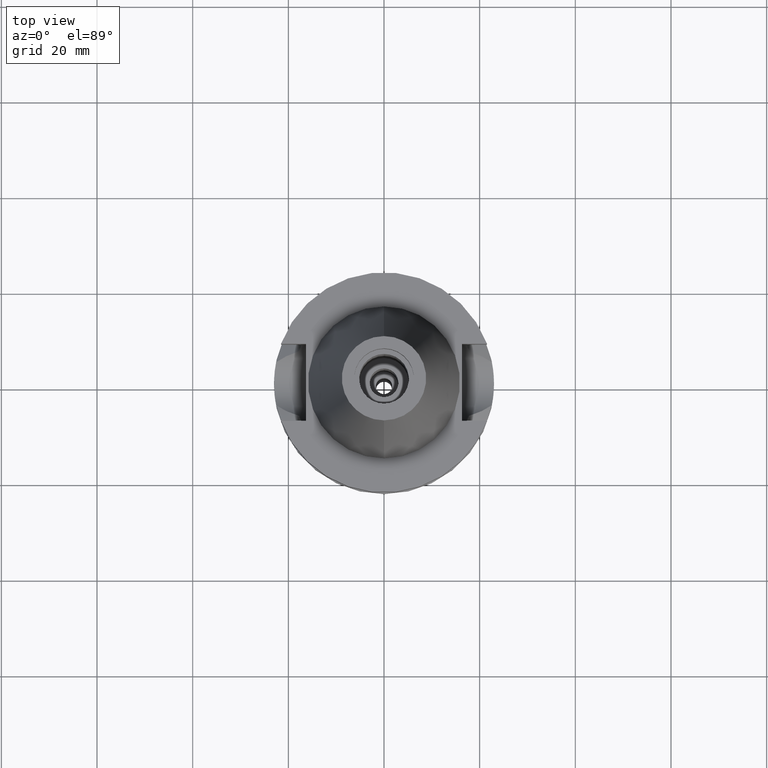
[diagram: clean part render]
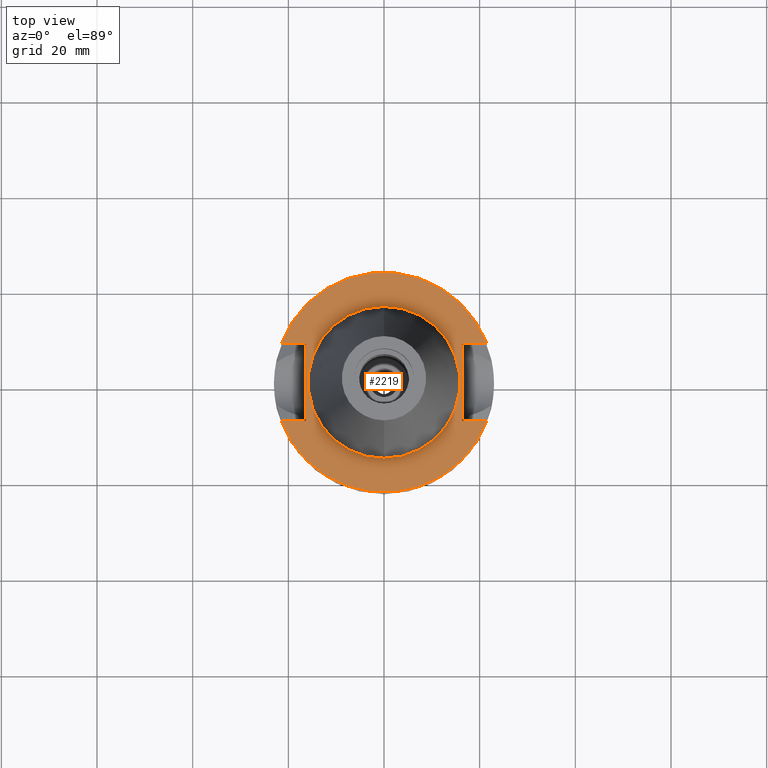
[diagram: same view with one face highlighted and labeled with its STEP entity id]
A machine part, top view. The second image highlights one B-rep face of the part: STEP entity #2219.
In plain terms, the highlighted planar face has unit normal (0, 0, -1).
Its self-contained STEP definition (entity closure, byte-faithful):
#54 = ORIENTED_EDGE ( 'NONE', *, *, #237, .F. ) ;
#59 = AXIS2_PLACEMENT_3D ( 'NONE', #1564, #2686, #1554 ) ;
#60 = VECTOR ( 'NONE', #930, 1000.000000000000000 ) ;
#132 = LINE ( 'NONE', #175, #2717 ) ;
#175 = CARTESIAN_POINT ( 'NONE',  ( -16.29999999999999716, -8.050000000000000711, -1.000000000000000000 ) ) ;
#216 = VERTEX_POINT ( 'NONE', #1632 ) ;
#237 = EDGE_CURVE ( 'NONE', #2261, #2210, #962, .T. ) ;
#284 = CARTESIAN_POINT ( 'NONE',  ( 16.29999999999999716, 8.050000000000000711, -1.000000000000000000 ) ) ;
#309 = EDGE_CURVE ( 'NONE', #1904, #1220, #2797, .T. ) ;
#314 = ORIENTED_EDGE ( 'NONE', *, *, #2080, .F. ) ;
#328 = DIRECTION ( 'NONE',  ( 1.000000000000000000, 9.380896855521999773E-14, 0.0000000000000000000 ) ) ;
#457 = DIRECTION ( 'NONE',  ( 0.0000000000000000000, 0.0000000000000000000, 1.000000000000000000 ) ) ;
#544 = EDGE_CURVE ( 'NONE', #2210, #2261, #629, .T. ) ;
#629 = CIRCLE ( 'NONE', #1488, 15.87500000000000000 ) ;
#649 = CARTESIAN_POINT ( 'NONE',  ( 0.0000000000000000000, 1.899855811856999906E-14, -1.000000000000000000 ) ) ;
#676 = CIRCLE ( 'NONE', #2017, 23.00000000000000000 ) ;
#712 = DIRECTION ( 'NONE',  ( 0.0000000000000000000, 1.000000000000000000, 0.0000000000000000000 ) ) ;
#742 = EDGE_CURVE ( 'NONE', #2339, #1220, #676, .T. ) ;
#744 = DIRECTION ( 'NONE',  ( 0.0000000000000000000, 0.0000000000000000000, 1.000000000000000000 ) ) ;
#757 = EDGE_LOOP ( 'NONE', ( #54, #1654 ) ) ;
#759 = CARTESIAN_POINT ( 'NONE',  ( -21.54524309446999908, 8.050000000000000711, -1.000000000000000000 ) ) ;
#764 = EDGE_CURVE ( 'NONE', #2667, #1113, #2940, .T. ) ;
#766 = EDGE_CURVE ( 'NONE', #1904, #2667, #943, .T. ) ;
#820 = VECTOR ( 'NONE', #2197, 1000.000000000000000 ) ;
#883 = FACE_OUTER_BOUND ( 'NONE', #2340, .T. ) ;
#889 = DIRECTION ( 'NONE',  ( 0.0000000000000000000, -1.000000000000000000, 0.0000000000000000000 ) ) ;
#896 = PLANE ( 'NONE',  #59 ) ;
#926 = EDGE_CURVE ( 'NONE', #2839, #2469, #132, .T. ) ;
#930 = DIRECTION ( 'NONE',  ( 0.0000000000000000000, -1.000000000000000000, 0.0000000000000000000 ) ) ;
#943 = LINE ( 'NONE', #284, #60 ) ;
#962 = CIRCLE ( 'NONE', #2666, 15.87500000000000000 ) ;
#1000 = CIRCLE ( 'NONE', #1953, 23.00000000000000000 ) ;
#1035 = EDGE_CURVE ( 'NONE', #1113, #2469, #1000, .T. ) ;
#1042 = ORIENTED_EDGE ( 'NONE', *, *, #926, .T. ) ;
#1069 = CARTESIAN_POINT ( 'NONE',  ( -16.29999999999999716, 8.050000000000000711, -1.000000000000000000 ) ) ;
#1076 = DIRECTION ( 'NONE',  ( -1.000000000000000000, -9.313164748262000573E-14, 0.0000000000000000000 ) ) ;
#1077 = ORIENTED_EDGE ( 'NONE', *, *, #1035, .F. ) ;
#1113 = VERTEX_POINT ( 'NONE', #1571 ) ;
#1135 = CARTESIAN_POINT ( 'NONE',  ( 16.29999999999999716, -8.050000000000000711, -1.000000000000000000 ) ) ;
#1220 = VERTEX_POINT ( 'NONE', #1834 ) ;
#1384 = CARTESIAN_POINT ( 'NONE',  ( -16.29999999999999716, -8.050000000000000711, -1.000000000000000000 ) ) ;
#1387 = DIRECTION ( 'NONE',  ( 1.000000000000000000, -9.347030801892000173E-14, 0.0000000000000000000 ) ) ;
#1388 = CARTESIAN_POINT ( 'NONE',  ( -16.29999999999999716, -8.050000000000000711, -1.000000000000000000 ) ) ;
#1488 = AXIS2_PLACEMENT_3D ( 'NONE', #649, #457, #1825 ) ;
#1524 = CARTESIAN_POINT ( 'NONE',  ( 16.29999999999999716, 8.050000000000000711, -1.000000000000000000 ) ) ;
#1547 = CARTESIAN_POINT ( 'NONE',  ( 0.0000000000000000000, 1.899855811856999906E-14, -1.000000000000000000 ) ) ;
#1554 = DIRECTION ( 'NONE',  ( 0.0000000000000000000, -1.000000000000000000, 0.0000000000000000000 ) ) ;
#1564 = CARTESIAN_POINT ( 'NONE',  ( 0.0000000000000000000, 1.212400331155999925E-14, -1.000000000000000000 ) ) ;
#1571 = CARTESIAN_POINT ( 'NONE',  ( 21.54524309446999908, -8.050000000000000711, -1.000000000000000000 ) ) ;
#1632 = CARTESIAN_POINT ( 'NONE',  ( -16.29999999999999716, 8.050000000000000711, -1.000000000000000000 ) ) ;
#1654 = ORIENTED_EDGE ( 'NONE', *, *, #544, .F. ) ;
#1781 = FACE_BOUND ( 'NONE', #757, .T. ) ;
#1793 = CARTESIAN_POINT ( 'NONE',  ( 0.0000000000000000000, 1.899855811856999906E-14, -1.000000000000000000 ) ) ;
#1825 = DIRECTION ( 'NONE',  ( 0.0000000000000000000, -1.000000000000000000, 0.0000000000000000000 ) ) ;
#1827 = CARTESIAN_POINT ( 'NONE',  ( 0.0000000000000000000, 15.87500000000000000, -1.000000000000000000 ) ) ;
#1834 = CARTESIAN_POINT ( 'NONE',  ( 21.54524309446999908, 8.050000000000000711, -1.000000000000000000 ) ) ;
#1904 = VERTEX_POINT ( 'NONE', #2785 ) ;
#1948 = LINE ( 'NONE', #1069, #820 ) ;
#1953 = AXIS2_PLACEMENT_3D ( 'NONE', #1547, #2421, #889 ) ;
#1996 = ORIENTED_EDGE ( 'NONE', *, *, #742, .F. ) ;
#2017 = AXIS2_PLACEMENT_3D ( 'NONE', #1793, #2041, #2928 ) ;
#2041 = DIRECTION ( 'NONE',  ( 0.0000000000000000000, 0.0000000000000000000, -1.000000000000000000 ) ) ;
#2051 = ORIENTED_EDGE ( 'NONE', *, *, #2416, .F. ) ;
#2073 = CARTESIAN_POINT ( 'NONE',  ( 0.0000000000000000000, -15.87500000000000000, -1.000000000000000000 ) ) ;
#2080 = EDGE_CURVE ( 'NONE', #216, #2339, #1948, .T. ) ;
#2124 = ORIENTED_EDGE ( 'NONE', *, *, #764, .F. ) ;
#2142 = CARTESIAN_POINT ( 'NONE',  ( 0.0000000000000000000, 1.899855811856999906E-14, -1.000000000000000000 ) ) ;
#2192 = CARTESIAN_POINT ( 'NONE',  ( 16.29999999999999716, -8.050000000000000711, -1.000000000000000000 ) ) ;
#2197 = DIRECTION ( 'NONE',  ( -1.000000000000000000, 9.347030801892000173E-14, 0.0000000000000000000 ) ) ;
#2210 = VERTEX_POINT ( 'NONE', #2073 ) ;
#2219 = ADVANCED_FACE ( 'NONE', ( #883, #1781 ), #896, .F. ) ;
#2261 = VERTEX_POINT ( 'NONE', #1827 ) ;
#2339 = VERTEX_POINT ( 'NONE', #759 ) ;
#2340 = EDGE_LOOP ( 'NONE', ( #1042, #1077, #2124, #2564, #2453, #1996, #314, #2051 ) ) ;
#2381 = VECTOR ( 'NONE', #2794, 1000.000000000000000 ) ;
#2383 = VECTOR ( 'NONE', #1387, 1000.000000000000000 ) ;
#2416 = EDGE_CURVE ( 'NONE', #2839, #216, #2740, .T. ) ;
#2421 = DIRECTION ( 'NONE',  ( 0.0000000000000000000, 0.0000000000000000000, -1.000000000000000000 ) ) ;
#2453 = ORIENTED_EDGE ( 'NONE', *, *, #309, .T. ) ;
#2469 = VERTEX_POINT ( 'NONE', #2852 ) ;
#2531 = VECTOR ( 'NONE', #328, 1000.000000000000000 ) ;
#2564 = ORIENTED_EDGE ( 'NONE', *, *, #766, .F. ) ;
#2666 = AXIS2_PLACEMENT_3D ( 'NONE', #2142, #744, #712 ) ;
#2667 = VERTEX_POINT ( 'NONE', #2192 ) ;
#2686 = DIRECTION ( 'NONE',  ( 0.0000000000000000000, 0.0000000000000000000, -1.000000000000000000 ) ) ;
#2717 = VECTOR ( 'NONE', #1076, 1000.000000000000000 ) ;
#2740 = LINE ( 'NONE', #1388, #2381 ) ;
#2785 = CARTESIAN_POINT ( 'NONE',  ( 16.29999999999999716, 8.050000000000000711, -1.000000000000000000 ) ) ;
#2794 = DIRECTION ( 'NONE',  ( 0.0000000000000000000, 1.000000000000000000, 0.0000000000000000000 ) ) ;
#2797 = LINE ( 'NONE', #1524, #2531 ) ;
#2839 = VERTEX_POINT ( 'NONE', #1384 ) ;
#2852 = CARTESIAN_POINT ( 'NONE',  ( -21.54524309446999908, -8.050000000000000711, -1.000000000000000000 ) ) ;
#2928 = DIRECTION ( 'NONE',  ( 0.0000000000000000000, 1.000000000000000000, 0.0000000000000000000 ) ) ;
#2940 = LINE ( 'NONE', #1135, #2383 ) ;